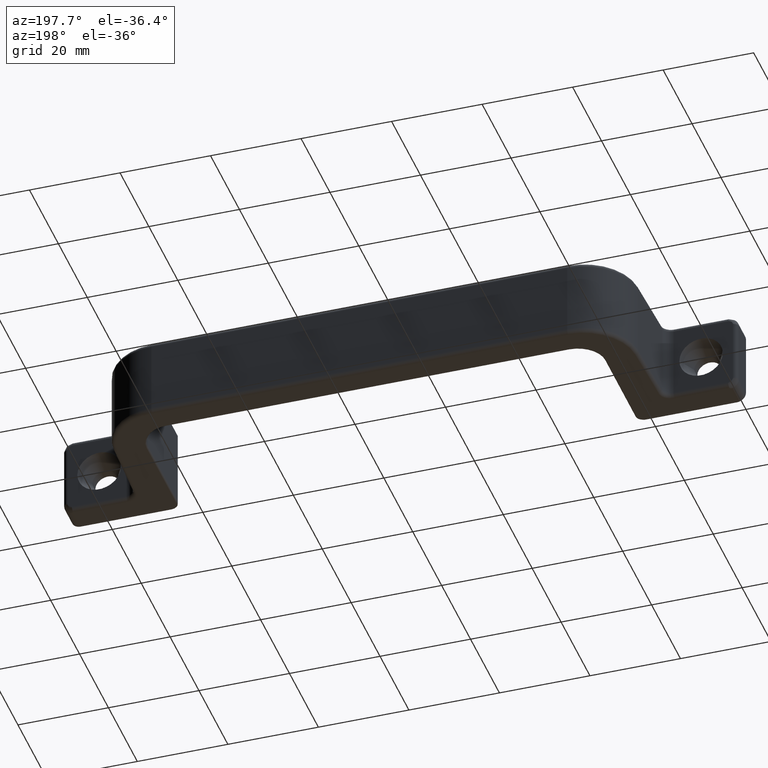
[diagram: clean part render]
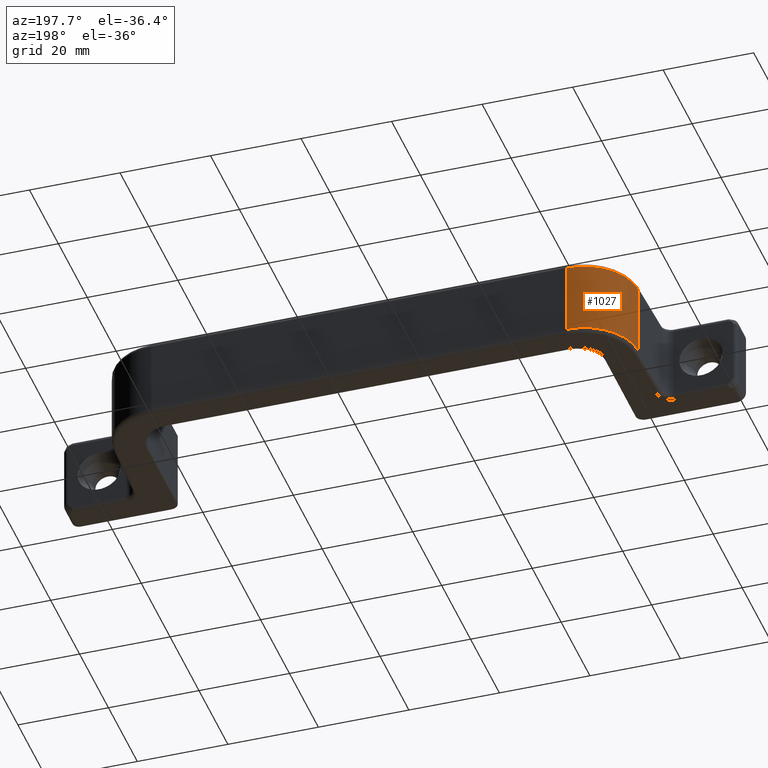
[diagram: same view with one face highlighted and labeled with its STEP entity id]
A machine part, auxiliary view. The second image highlights one B-rep face of the part: STEP entity #1027.
In plain terms, the highlighted cylindrical surface (partial cylindrical patch) has radius 12 mm, axis along (0, 0, 1).
Its self-contained STEP definition (entity closure, byte-faithful):
#106=LINE('',#1867,#172);
#107=LINE('',#1869,#173);
#172=VECTOR('',#1490,16.);
#173=VECTOR('',#1493,16.);
#210=CYLINDRICAL_SURFACE('',#1165,12.);
#277=FACE_OUTER_BOUND('',#348,.T.);
#348=EDGE_LOOP('',(#902,#903,#904,#905));
#412=CIRCLE('',#1132,12.);
#432=CIRCLE('',#1160,12.);
#497=VERTEX_POINT('',#1772);
#499=VERTEX_POINT('',#1778);
#517=VERTEX_POINT('',#1848);
#519=VERTEX_POINT('',#1854);
#627=EDGE_CURVE('',#497,#499,#412,.T.);
#657=EDGE_CURVE('',#517,#519,#432,.T.);
#662=EDGE_CURVE('',#499,#517,#106,.T.);
#663=EDGE_CURVE('',#497,#519,#107,.T.);
#902=ORIENTED_EDGE('',*,*,#657,.F.);
#903=ORIENTED_EDGE('',*,*,#662,.F.);
#904=ORIENTED_EDGE('',*,*,#627,.F.);
#905=ORIENTED_EDGE('',*,*,#663,.T.);
#1027=ADVANCED_FACE('',(#277),#210,.T.);
#1132=AXIS2_PLACEMENT_3D('',#1782,#1410,#1411);
#1160=AXIS2_PLACEMENT_3D('',#1858,#1476,#1477);
#1165=AXIS2_PLACEMENT_3D('',#1868,#1491,#1492);
#1410=DIRECTION('center_axis',(0.,0.,1.));
#1411=DIRECTION('ref_axis',(-0.694658370458997,0.719339800338651,0.));
#1476=DIRECTION('center_axis',(0.,0.,-1.));
#1477=DIRECTION('ref_axis',(-0.694658370458997,0.719339800338651,0.));
#1490=DIRECTION('',(0.,0.,-1.));
#1491=DIRECTION('center_axis',(0.,0.,1.));
#1492=DIRECTION('ref_axis',(0.,-1.,0.));
#1493=DIRECTION('',(0.,0.,-1.));
#1772=CARTESIAN_POINT('',(28.5765230743013,34.3,8.));
#1778=CARTESIAN_POINT('',(16.5838331500722,22.71879396043,8.));
#1782=CARTESIAN_POINT('Origin',(28.5765230743013,22.3,8.));
#1848=CARTESIAN_POINT('',(16.5838331500722,22.71879396043,-8.));
#1854=CARTESIAN_POINT('',(28.5765230743013,34.3,-8.));
#1858=CARTESIAN_POINT('Origin',(28.5765230743013,22.3,-8.));
#1867=CARTESIAN_POINT('',(16.5838331500722,22.71879396043,0.));
#1868=CARTESIAN_POINT('Origin',(28.5765230743013,22.3,0.));
#1869=CARTESIAN_POINT('',(28.5765230743013,34.3,0.));